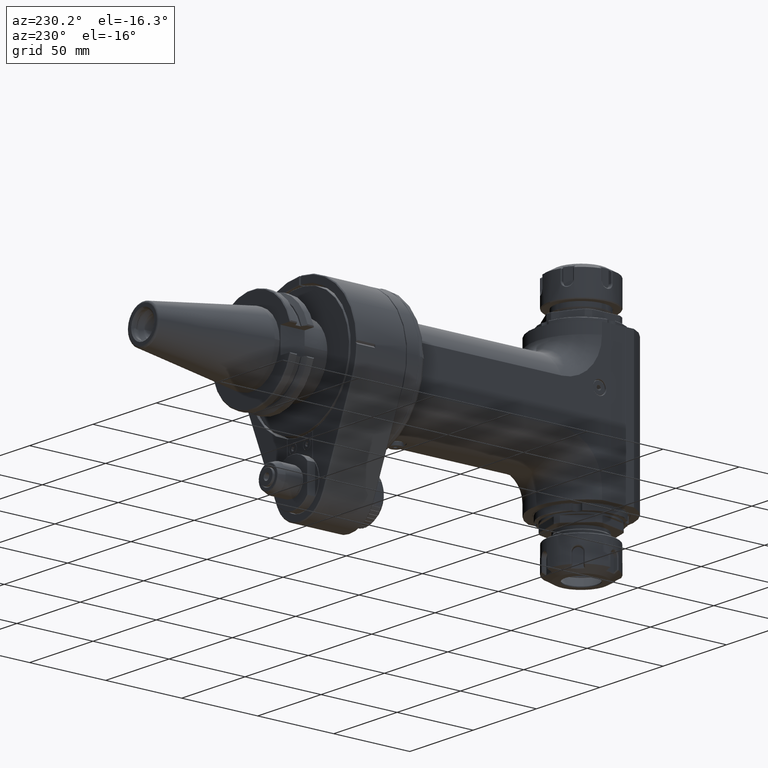
[diagram: clean part render]
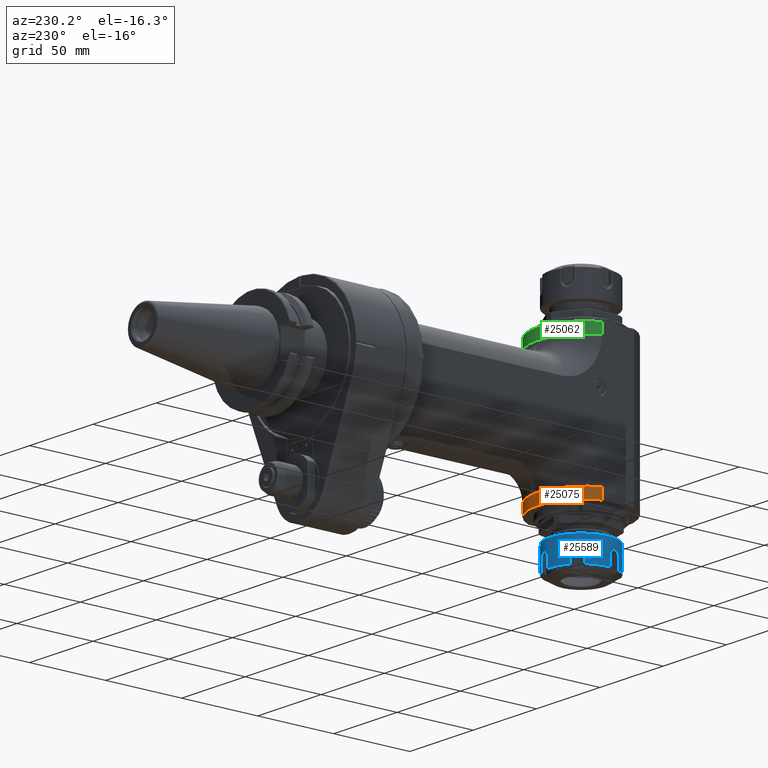
[diagram: same view with three faces highlighted in distinct colors, each labeled with its STEP entity id]
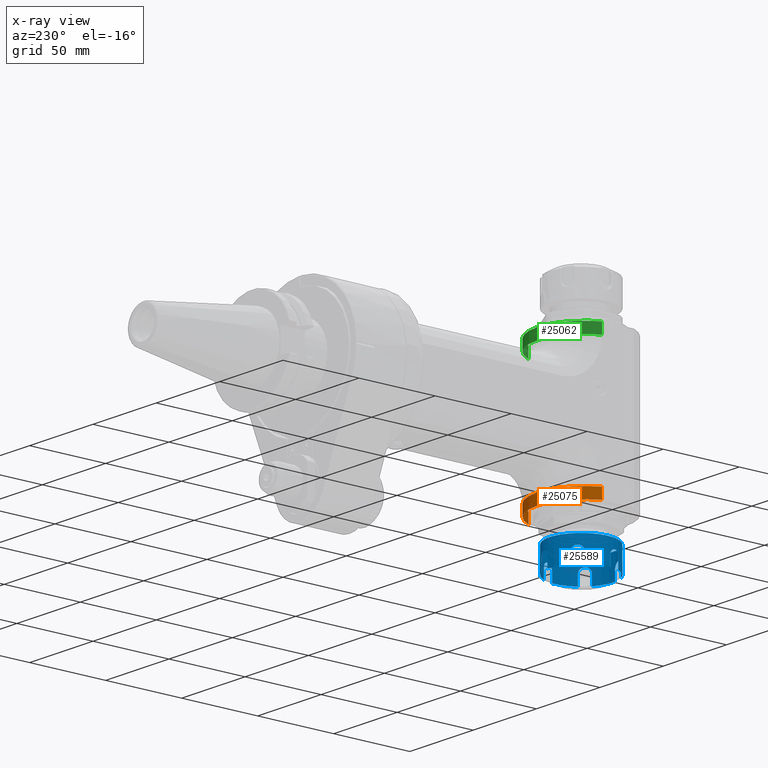
[diagram: x-ray of the same camera — body ghosted, the three highlighted faces saturated]
A machine part, auxiliary view with three faces highlighted in distinct colors.
The next image is the same camera in x-ray (body ghosted, the three faces saturated) — at least one of them is partly hidden behind the body in this view.
Their STEP definitions:

[orange] entity #25075 — the highlighted cylindrical surface (partial cylindrical patch) has radius 32 mm, axis along (-0, 0, -1).
#1540=LINE('',#37385,#3472);
#1596=LINE('',#37834,#3528);
#3472=VECTOR('',#29704,7.);
#3528=VECTOR('',#29868,7.);
#5363=CYLINDRICAL_SURFACE('',#26858,32.);
#5889=FACE_OUTER_BOUND('',#7431,.T.);
#7431=EDGE_LOOP('',(#17100,#17101,#17102,#17103));
#9075=CIRCLE('',#26789,32.);
#9083=CIRCLE('',#26859,32.);
#10217=VERTEX_POINT('',#37376);
#10218=VERTEX_POINT('',#37378);
#10220=VERTEX_POINT('',#37384);
#10371=VERTEX_POINT('',#37832);
#12850=EDGE_CURVE('',#10217,#10218,#9075,.T.);
#12853=EDGE_CURVE('',#10220,#10218,#1540,.T.);
#13008=EDGE_CURVE('',#10371,#10217,#1596,.T.);
#13020=EDGE_CURVE('',#10371,#10220,#9083,.T.);
#17100=ORIENTED_EDGE('',*,*,#13008,.F.);
#17101=ORIENTED_EDGE('',*,*,#13020,.T.);
#17102=ORIENTED_EDGE('',*,*,#12853,.T.);
#17103=ORIENTED_EDGE('',*,*,#12850,.F.);
#25075=ADVANCED_FACE('',(#5889),#5363,.T.);
#26789=AXIS2_PLACEMENT_3D('',#37379,#29697,#29698);
#26858=AXIS2_PLACEMENT_3D('',#37858,#29903,#29904);
#26859=AXIS2_PLACEMENT_3D('',#37859,#29905,#29906);
#29697=DIRECTION('center_axis',(0.,0.,-1.));
#29698=DIRECTION('ref_axis',(-0.906250000000018,0.422742164327108,0.));
#29704=DIRECTION('',(0.,0.,-1.));
#29868=DIRECTION('',(0.,0.,-1.));
#29903=DIRECTION('center_axis',(0.,0.,-1.));
#29904=DIRECTION('ref_axis',(1.,0.,0.));
#29905=DIRECTION('center_axis',(0.,0.,-1.));
#29906=DIRECTION('ref_axis',(-0.906250000000018,0.422742164327108,0.));
#37376=CARTESIAN_POINT('',(-29.,-166.2722507415,-47.));
#37378=CARTESIAN_POINT('',(29.,-166.2722507415,-47.));
#37379=CARTESIAN_POINT('Origin',(0.,-179.8,-47.));
#37384=CARTESIAN_POINT('',(29.,-166.2722507415,-40.));
#37385=CARTESIAN_POINT('',(29.,-166.2722507415,-40.));
#37832=CARTESIAN_POINT('',(-29.,-166.2722507415,-40.));
#37834=CARTESIAN_POINT('',(-29.,-166.2722507415,-40.));
#37858=CARTESIAN_POINT('Origin',(0.,-179.8,55.));
#37859=CARTESIAN_POINT('Origin',(0.,-179.8,-40.));

[blue] entity #25589 — the highlighted cylindrical surface (bore or boss wall) has radius 20.85 mm, axis along (-0, 0, -1).
#1110=B_SPLINE_CURVE_WITH_KNOTS('',3,(#43370,#43371,#43372,#43373,#43374,
#43375,#43376,#43377,#43378,#43379,#43380,#43381,#43382,#43383),
 .UNSPECIFIED.,.F.,.F.,(4,2,2,2,2,2,4),(8.8804526834675E-6,0.071641247032661,
0.144152538462695,0.2831791873941,0.419629719377373,0.489984756441499,0.558207731519408),
 .UNSPECIFIED.);
#1111=B_SPLINE_CURVE_WITH_KNOTS('',3,(#43391,#43392,#43393,#43394,#43395,
#43396,#43397,#43398,#43399,#43400,#43401,#43402,#43403,#43404,#43405,#43406,
#43407,#43408,#43409,#43410,#43411,#43412,#43413,#43414,#43415,#43416),
 .UNSPECIFIED.,.F.,.F.,(4,2,2,2,2,2,2,2,2,2,2,2,4),(1.7881519654597E-5,
0.067907588692697,0.138491669530043,0.27497402678563,0.414979861624011,
0.484477169792936,0.553945936720582,0.623718329748269,0.658431451718642,
0.728153352680308,0.853789411713875,0.956299005462386,1.05186644702598),
 .UNSPECIFIED.);
#1112=B_SPLINE_CURVE_WITH_KNOTS('',3,(#43424,#43425,#43426,#43427,#43428,
#43429,#43430,#43431,#43432,#43433,#43434,#43435,#43436,#43437,#43438,#43439,
#43440,#43441,#43442,#43443,#43444,#43445,#43446,#43447,#43448,#43449),
 .UNSPECIFIED.,.F.,.F.,(4,2,2,2,2,2,2,2,2,2,2,2,4),(1.88569891718872E-5,
0.0677792377868091,0.138933553399323,0.275528151042761,0.414828608229361,
0.54763145599573,0.578738810458775,0.60985559444713,0.672022999759918,0.797346418517486,
0.919100710535635,0.982163318914565,1.04281656941843),.UNSPECIFIED.);
#1113=B_SPLINE_CURVE_WITH_KNOTS('',3,(#43457,#43458,#43459,#43460,#43461,
#43462,#43463,#43464,#43465,#43466,#43467,#43468,#43469,#43470),
 .UNSPECIFIED.,.F.,.F.,(4,2,2,2,2,2,4),(1.57405033563573E-5,0.0678213540002741,
0.137743715284692,0.273506035627301,0.411771695750024,0.483772996816319,
0.554864995903537),.UNSPECIFIED.);
#1114=B_SPLINE_CURVE_WITH_KNOTS('',3,(#43473,#43474,#43475,#43476,#43477,
#43478,#43479,#43480,#43481,#43482,#43483,#43484,#43485,#43486),
 .UNSPECIFIED.,.F.,.F.,(4,2,2,2,2,2,4),(8.88045267748951E-6,0.0716412470324935,
0.144152538462247,0.283179187393486,0.419629719376968,0.489984756441144,
0.558207731518909),.UNSPECIFIED.);
#1115=B_SPLINE_CURVE_WITH_KNOTS('',3,(#43494,#43495,#43496,#43497,#43498,
#43499,#43500,#43501,#43502,#43503,#43504,#43505,#43506,#43507,#43508,#43509,
#43510,#43511,#43512,#43513,#43514,#43515,#43516,#43517,#43518,#43519),
 .UNSPECIFIED.,.F.,.F.,(4,2,2,2,2,2,2,2,2,2,2,2,4),(1.7881519651039E-5,
0.0679075886927322,0.138491669530161,0.274974026786202,0.414979861625346,
0.484477169794633,0.553945936722771,0.623718329751006,0.658431451721587,
0.728153352683556,0.853789411717834,0.956299005466963,1.0518664470311),
 .UNSPECIFIED.);
#1116=B_SPLINE_CURVE_WITH_KNOTS('',3,(#43527,#43528,#43529,#43530,#43531,
#43532,#43533,#43534,#43535,#43536,#43537,#43538,#43539,#43540,#43541,#43542,
#43543,#43544,#43545,#43546,#43547,#43548,#43549,#43550,#43551,#43552),
 .UNSPECIFIED.,.F.,.F.,(4,2,2,2,2,2,2,2,2,2,2,2,4),(1.8856989176297E-5,
0.0677792377866691,0.138933553399142,0.275528151042643,0.414828608229631,
0.547631455995771,0.578738810458403,0.609855594445578,0.672022999755302,
0.797346418507965,0.919100710520477,0.982163318896671,1.04281656939786),
 .UNSPECIFIED.);
#1117=B_SPLINE_CURVE_WITH_KNOTS('',3,(#43559,#43560,#43561,#43562,#43563,
#43564,#43565,#43566,#43567,#43568,#43569,#43570,#43571,#43572),
 .UNSPECIFIED.,.F.,.F.,(4,2,2,2,2,2,4),(1.57405033581336E-5,0.0678213540002615,
0.137743715284569,0.273506035626911,0.411771695749486,0.483772996815737,
0.554864995902884),.UNSPECIFIED.);
#2255=LINE('',#43385,#4187);
#2256=LINE('',#43389,#4188);
#2257=LINE('',#43418,#4189);
#2258=LINE('',#43422,#4190);
#2259=LINE('',#43451,#4191);
#2260=LINE('',#43455,#4192);
#2261=LINE('',#43471,#4193);
#2262=LINE('',#43488,#4194);
#2263=LINE('',#43492,#4195);
#2264=LINE('',#43521,#4196);
#2265=LINE('',#43525,#4197);
#2266=LINE('',#43554,#4198);
#2267=LINE('',#43558,#4199);
#4187=VECTOR('',#31987,10.);
#4188=VECTOR('',#31990,10.);
#4189=VECTOR('',#31991,10.);
#4190=VECTOR('',#31994,10.);
#4191=VECTOR('',#31995,10.);
#4192=VECTOR('',#31998,10.);
#4193=VECTOR('',#31999,20.85);
#4194=VECTOR('',#32000,10.);
#4195=VECTOR('',#32003,10.);
#4196=VECTOR('',#32004,10.);
#4197=VECTOR('',#32007,10.);
#4198=VECTOR('',#32008,10.);
#4199=VECTOR('',#32011,10.);
#5424=CYLINDRICAL_SURFACE('',#27575,20.85);
#6403=FACE_OUTER_BOUND('',#7996,.T.);
#7996=EDGE_LOOP('',(#19629,#19630,#19631,#19632,#19633,#19634,#19635,#19636,
#19637,#19638,#19639,#19640,#19641,#19642,#19643,#19644,#19645,#19646,#19647,
#19648,#19649,#19650,#19651,#19652,#19653,#19654,#19655,#19656,#19657,#19658));
#9310=CIRCLE('',#27573,20.85);
#9311=CIRCLE('',#27574,20.85);
#9312=CIRCLE('',#27576,20.85);
#9313=CIRCLE('',#27577,20.85);
#9314=CIRCLE('',#27578,20.85);
#9315=CIRCLE('',#27579,20.85);
#9316=CIRCLE('',#27580,20.85);
#9317=CIRCLE('',#27581,20.85);
#11107=VERTEX_POINT('',#43362);
#11108=VERTEX_POINT('',#43363);
#11109=VERTEX_POINT('',#43368);
#11110=VERTEX_POINT('',#43369);
#11111=VERTEX_POINT('',#43384);
#11112=VERTEX_POINT('',#43386);
#11113=VERTEX_POINT('',#43388);
#11114=VERTEX_POINT('',#43390);
#11115=VERTEX_POINT('',#43417);
#11116=VERTEX_POINT('',#43419);
#11117=VERTEX_POINT('',#43421);
#11118=VERTEX_POINT('',#43423);
#11119=VERTEX_POINT('',#43450);
#11120=VERTEX_POINT('',#43452);
#11121=VERTEX_POINT('',#43454);
#11122=VERTEX_POINT('',#43456);
#11123=VERTEX_POINT('',#43472);
#11124=VERTEX_POINT('',#43487);
#11125=VERTEX_POINT('',#43489);
#11126=VERTEX_POINT('',#43491);
#11127=VERTEX_POINT('',#43493);
#11128=VERTEX_POINT('',#43520);
#11129=VERTEX_POINT('',#43522);
#11130=VERTEX_POINT('',#43524);
#11131=VERTEX_POINT('',#43526);
#11132=VERTEX_POINT('',#43553);
#11133=VERTEX_POINT('',#43555);
#11134=VERTEX_POINT('',#43557);
#14201=EDGE_CURVE('',#11107,#11108,#9310,.T.);
#14202=EDGE_CURVE('',#11108,#11107,#9311,.T.);
#14204=EDGE_CURVE('',#11109,#11110,#1110,.T.);
#14205=EDGE_CURVE('',#11110,#11111,#2255,.T.);
#14206=EDGE_CURVE('',#11111,#11112,#9312,.T.);
#14207=EDGE_CURVE('',#11112,#11113,#2256,.T.);
#14208=EDGE_CURVE('',#11113,#11114,#1111,.T.);
#14209=EDGE_CURVE('',#11114,#11115,#2257,.T.);
#14210=EDGE_CURVE('',#11115,#11116,#9313,.T.);
#14211=EDGE_CURVE('',#11116,#11117,#2258,.T.);
#14212=EDGE_CURVE('',#11117,#11118,#1112,.T.);
#14213=EDGE_CURVE('',#11118,#11119,#2259,.T.);
#14214=EDGE_CURVE('',#11119,#11120,#9314,.T.);
#14215=EDGE_CURVE('',#11120,#11121,#2260,.T.);
#14216=EDGE_CURVE('',#11121,#11122,#1113,.T.);
#14217=EDGE_CURVE('',#11122,#11107,#2261,.T.);
#14218=EDGE_CURVE('',#11122,#11123,#1114,.T.);
#14219=EDGE_CURVE('',#11123,#11124,#2262,.T.);
#14220=EDGE_CURVE('',#11125,#11124,#9315,.T.);
#14221=EDGE_CURVE('',#11125,#11126,#2263,.T.);
#14222=EDGE_CURVE('',#11126,#11127,#1115,.T.);
#14223=EDGE_CURVE('',#11127,#11128,#2264,.T.);
#14224=EDGE_CURVE('',#11129,#11128,#9316,.T.);
#14225=EDGE_CURVE('',#11129,#11130,#2265,.T.);
#14226=EDGE_CURVE('',#11130,#11131,#1116,.T.);
#14227=EDGE_CURVE('',#11131,#11132,#2266,.T.);
#14228=EDGE_CURVE('',#11133,#11132,#9317,.T.);
#14229=EDGE_CURVE('',#11133,#11134,#2267,.T.);
#14230=EDGE_CURVE('',#11134,#11109,#1117,.T.);
#19629=ORIENTED_EDGE('',*,*,#14204,.T.);
#19630=ORIENTED_EDGE('',*,*,#14205,.T.);
#19631=ORIENTED_EDGE('',*,*,#14206,.T.);
#19632=ORIENTED_EDGE('',*,*,#14207,.T.);
#19633=ORIENTED_EDGE('',*,*,#14208,.T.);
#19634=ORIENTED_EDGE('',*,*,#14209,.T.);
#19635=ORIENTED_EDGE('',*,*,#14210,.T.);
#19636=ORIENTED_EDGE('',*,*,#14211,.T.);
#19637=ORIENTED_EDGE('',*,*,#14212,.T.);
#19638=ORIENTED_EDGE('',*,*,#14213,.T.);
#19639=ORIENTED_EDGE('',*,*,#14214,.T.);
#19640=ORIENTED_EDGE('',*,*,#14215,.T.);
#19641=ORIENTED_EDGE('',*,*,#14216,.T.);
#19642=ORIENTED_EDGE('',*,*,#14217,.T.);
#19643=ORIENTED_EDGE('',*,*,#14201,.T.);
#19644=ORIENTED_EDGE('',*,*,#14202,.T.);
#19645=ORIENTED_EDGE('',*,*,#14217,.F.);
#19646=ORIENTED_EDGE('',*,*,#14218,.T.);
#19647=ORIENTED_EDGE('',*,*,#14219,.T.);
#19648=ORIENTED_EDGE('',*,*,#14220,.F.);
#19649=ORIENTED_EDGE('',*,*,#14221,.T.);
#19650=ORIENTED_EDGE('',*,*,#14222,.T.);
#19651=ORIENTED_EDGE('',*,*,#14223,.T.);
#19652=ORIENTED_EDGE('',*,*,#14224,.F.);
#19653=ORIENTED_EDGE('',*,*,#14225,.T.);
#19654=ORIENTED_EDGE('',*,*,#14226,.T.);
#19655=ORIENTED_EDGE('',*,*,#14227,.T.);
#19656=ORIENTED_EDGE('',*,*,#14228,.F.);
#19657=ORIENTED_EDGE('',*,*,#14229,.T.);
#19658=ORIENTED_EDGE('',*,*,#14230,.T.);
#25589=ADVANCED_FACE('',(#6403),#5424,.T.);
#27573=AXIS2_PLACEMENT_3D('',#43364,#31980,#31981);
#27574=AXIS2_PLACEMENT_3D('',#43365,#31982,#31983);
#27575=AXIS2_PLACEMENT_3D('',#43367,#31985,#31986);
#27576=AXIS2_PLACEMENT_3D('',#43387,#31988,#31989);
#27577=AXIS2_PLACEMENT_3D('',#43420,#31992,#31993);
#27578=AXIS2_PLACEMENT_3D('',#43453,#31996,#31997);
#27579=AXIS2_PLACEMENT_3D('',#43490,#32001,#32002);
#27580=AXIS2_PLACEMENT_3D('',#43523,#32005,#32006);
#27581=AXIS2_PLACEMENT_3D('',#43556,#32009,#32010);
#31980=DIRECTION('center_axis',(0.,0.,-1.));
#31981=DIRECTION('ref_axis',(0.707106781186498,-0.707106781186598,0.));
#31982=DIRECTION('center_axis',(0.,0.,-1.));
#31983=DIRECTION('ref_axis',(0.707106781186498,-0.707106781186598,0.));
#31985=DIRECTION('center_axis',(0.,0.,-1.));
#31986=DIRECTION('ref_axis',(0.707106781186498,-0.707106781186598,0.));
#31987=DIRECTION('',(0.,0.,-1.));
#31988=DIRECTION('center_axis',(0.,0.,1.));
#31989=DIRECTION('ref_axis',(0.818185363413363,-0.574954529590074,0.));
#31990=DIRECTION('',(0.,0.,1.));
#31991=DIRECTION('',(0.,0.,-1.));
#31992=DIRECTION('center_axis',(0.,0.,1.));
#31993=DIRECTION('ref_axis',(0.907017910352629,0.421092044925513,0.));
#31994=DIRECTION('',(0.,0.,1.));
#31995=DIRECTION('',(0.,0.,-1.));
#31996=DIRECTION('center_axis',(0.,0.,1.));
#31997=DIRECTION('ref_axis',(0.0888325469392412,0.996046574515613,0.));
#31998=DIRECTION('',(0.,0.,1.));
#31999=DIRECTION('',(0.,0.,1.));
#32000=DIRECTION('',(0.,0.,-1.));
#32001=DIRECTION('center_axis',(0.,0.,-1.));
#32002=DIRECTION('ref_axis',(-0.996046574515623,-0.0888325469391321,0.));
#32003=DIRECTION('',(0.,0.,1.));
#32004=DIRECTION('',(0.,0.,-1.));
#32005=DIRECTION('center_axis',(0.,0.,-1.));
#32006=DIRECTION('ref_axis',(-0.421092044925596,-0.907017910352591,0.));
#32007=DIRECTION('',(0.,0.,1.));
#32008=DIRECTION('',(0.,0.,-1.));
#32009=DIRECTION('center_axis',(0.,0.,-1.));
#32010=DIRECTION('ref_axis',(0.574954529590007,-0.81818536341341,0.));
#32011=DIRECTION('',(0.,0.,1.));
#43362=CARTESIAN_POINT('',(-14.74317638774,-162.0568236123,-62.00000277094));
#43363=CARTESIAN_POINT('',(14.7431763877388,-162.056823612263,-62.0000027709424));
#43364=CARTESIAN_POINT('Origin',(0.,-176.8,-62.00000277094));
#43365=CARTESIAN_POINT('Origin',(0.,-176.8,-62.00000277094));
#43367=CARTESIAN_POINT('Origin',(0.,-176.8,-60.5));
#43368=CARTESIAN_POINT('',(14.7431737490208,-191.543173750104,-67.9999093069869));
#43369=CARTESIAN_POINT('',(17.0592045060876,-188.787659970177,-71.4999999556922));
#43370=CARTESIAN_POINT('Ctrl Pts',(14.7431763870307,-191.543176388448,-67.9998988188292));
#43371=CARTESIAN_POINT('Ctrl Pts',(14.9120154371079,-191.374337338387,-67.9997098724781));
#43372=CARTESIAN_POINT('Ctrl Pts',(15.0779139343322,-191.202565561858,-68.0233046357221));
#43373=CARTESIAN_POINT('Ctrl Pts',(15.3996848284967,-190.858038470994,-68.1165549708601));
#43374=CARTESIAN_POINT('Ctrl Pts',(15.5555384726784,-190.685166660419,-68.1868093962064));
#43375=CARTESIAN_POINT('Ctrl Pts',(15.9852446694346,-190.193234711179,-68.4575849150465));
#43376=CARTESIAN_POINT('Ctrl Pts',(16.2333008808686,-189.888627363897,-68.7163692985507));
#43377=CARTESIAN_POINT('Ctrl Pts',(16.6371075952518,-189.371191113362,-69.3606561564466));
#43378=CARTESIAN_POINT('Ctrl Pts',(16.7924982271377,-189.159893749286,-69.7403302193558));
#43379=CARTESIAN_POINT('Ctrl Pts',(16.952482072793,-188.938553613989,-70.3744694481651));
#43380=CARTESIAN_POINT('Ctrl Pts',(16.9928475442863,-188.881714152658,-70.5973034114872));
#43381=CARTESIAN_POINT('Ctrl Pts',(17.0460249309869,-188.80656437899,-71.0473651918642));
#43382=CARTESIAN_POINT('Ctrl Pts',(17.059476537522,-188.787358356038,-71.2739910684245));
#43383=CARTESIAN_POINT('Ctrl Pts',(17.0593037197582,-188.787604289308,-71.5000009014005));
#43384=CARTESIAN_POINT('',(17.05916482717,-188.787801942,-78.12250092524));
#43385=CARTESIAN_POINT('',(17.0591648271973,-188.787801941912,-60.5));
#43386=CARTESIAN_POINT('',(20.76757107865,-174.9478413963,-78.12250092524));
#43387=CARTESIAN_POINT('Origin',(0.,-176.8,-78.12250092524));
#43388=CARTESIAN_POINT('',(20.767521537055,-174.94806855584,-71.4999999716341));
#43389=CARTESIAN_POINT('',(20.7675710786509,-174.947841396321,-60.5));
#43390=CARTESIAN_POINT('',(18.9111760975423,-168.020065682398,-71.4999999558186));
#43391=CARTESIAN_POINT('Ctrl Pts',(20.7676014787653,-174.948182293209,-71.500000831647));
#43392=CARTESIAN_POINT('Ctrl Pts',(20.7676188868011,-174.94837751931,-71.2737014095556));
#43393=CARTESIAN_POINT('Ctrl Pts',(20.7655578880662,-174.924854400058,-71.0464645270052));
#43394=CARTESIAN_POINT('Ctrl Pts',(20.7570199363155,-174.832550894353,-70.5938641186685));
#43395=CARTESIAN_POINT('Ctrl Pts',(20.7504116927973,-174.762397927025,-70.3695507681703));
#43396=CARTESIAN_POINT('Ctrl Pts',(20.7221068470428,-174.486973364167,-69.7306199497593));
#43397=CARTESIAN_POINT('Ctrl Pts',(20.6928280702116,-174.223609018295,-69.3497212879574));
#43398=CARTESIAN_POINT('Ctrl Pts',(20.5999691816837,-173.563047075071,-68.70123615472));
#43399=CARTESIAN_POINT('Ctrl Pts',(20.5359606785247,-173.168323117326,-68.4418242112298));
#43400=CARTESIAN_POINT('Ctrl Pts',(20.4081422213358,-172.524768571885,-68.1777489295405));
#43401=CARTESIAN_POINT('Ctrl Pts',(20.3608026792749,-172.304076046398,-68.1112091467045));
#43402=CARTESIAN_POINT('Ctrl Pts',(20.256466397051,-171.855190253815,-68.0221904557127));
#43403=CARTESIAN_POINT('Ctrl Pts',(20.1996878828002,-171.627943223853,-67.999862289649));
#43404=CARTESIAN_POINT('Ctrl Pts',(20.0779047461079,-171.173652585169,-68.0001365553688));
#43405=CARTESIAN_POINT('Ctrl Pts',(20.0131367166908,-170.947619383378,-68.0229355247662));
#43406=CARTESIAN_POINT('Ctrl Pts',(19.9122361556557,-170.616263756347,-68.0906870605713));
#43407=CARTESIAN_POINT('Ctrl Pts',(19.8781062385988,-170.507463012474,-68.1187315928412));
#43408=CARTESIAN_POINT('Ctrl Pts',(19.7743335921791,-170.185683734788,-68.2191923203281));
#43409=CARTESIAN_POINT('Ctrl Pts',(19.7036600691707,-169.978563255934,-68.3077513312044));
#43410=CARTESIAN_POINT('Ctrl Pts',(19.5064512246021,-169.42688532516,-68.6141314449676));
#43411=CARTESIAN_POINT('Ctrl Pts',(19.367762534895,-169.072079771819,-68.8966523205528));
#43412=CARTESIAN_POINT('Ctrl Pts',(19.1373659140957,-168.520148406045,-69.6059556461174));
#43413=CARTESIAN_POINT('Ctrl Pts',(19.0517933261511,-168.328208744537,-69.9680263161831));
#43414=CARTESIAN_POINT('Ctrl Pts',(18.9402903685497,-168.081920217096,-70.7242355185773));
#43415=CARTESIAN_POINT('Ctrl Pts',(18.9109190067233,-168.019359776354,-71.1145072387204));
#43416=CARTESIAN_POINT('Ctrl Pts',(18.9111905992057,-168.019944754131,-71.5000014806403));
#43417=CARTESIAN_POINT('',(18.91132343085,-168.0202308633,-78.12250092524));
#43418=CARTESIAN_POINT('',(18.9113234308437,-168.020230863285,-60.5));
#43419=CARTESIAN_POINT('',(8.7797691367,-157.8886765691,-78.12250092524));
#43420=CARTESIAN_POINT('Origin',(0.,-176.8,-78.12250092524));
#43421=CARTESIAN_POINT('',(8.77990980217601,-157.888822958315,-71.4999999493892));
#43422=CARTESIAN_POINT('',(8.77976913666956,-157.888676569135,-60.5));
#43423=CARTESIAN_POINT('',(1.85199223066131,-156.03247292493,-71.4999999368364));
#43424=CARTESIAN_POINT('Ctrl Pts',(8.78009751102421,-157.888829023646,-71.5000008889396));
#43425=CARTESIAN_POINT('Ctrl Pts',(8.78027680710327,-157.88891226741,-71.2741323985168));
#43426=CARTESIAN_POINT('Ctrl Pts',(8.75889434216421,-157.878945001058,-71.0470917544465));
#43427=CARTESIAN_POINT('Ctrl Pts',(8.67452706172481,-157.840112253238,-70.5928869321526));
#43428=CARTESIAN_POINT('Ctrl Pts',(8.60985490908023,-157.810476509798,-70.3668926937998));
#43429=CARTESIAN_POINT('Ctrl Pts',(8.35561056558594,-157.696601815723,-69.7263329457535));
#43430=CARTESIAN_POINT('Ctrl Pts',(8.11175798827196,-157.589855768934,-69.3455069035907));
#43431=CARTESIAN_POINT('Ctrl Pts',(7.49696075810927,-157.341578943711,-68.7020296726769));
#43432=CARTESIAN_POINT('Ctrl Pts',(7.12679585734157,-157.201035960379,-68.4447820941399));
#43433=CARTESIAN_POINT('Ctrl Pts',(6.32474885172813,-156.928134884217,-68.1014074302769));
#43434=CARTESIAN_POINT('Ctrl Pts',(5.87805084056063,-156.789446113192,-67.9996132918299));
#43435=CARTESIAN_POINT('Ctrl Pts',(5.28045351073632,-156.629400207717,-68.0000944849583));
#43436=CARTESIAN_POINT('Ctrl Pts',(5.16684527240681,-156.600003296527,-68.0058091880531));
#43437=CARTESIAN_POINT('Ctrl Pts',(4.94005444448097,-156.543346099227,-68.0284484737245));
#43438=CARTESIAN_POINT('Ctrl Pts',(4.82698286911852,-156.516114136804,-68.0453653907442));
#43439=CARTESIAN_POINT('Ctrl Pts',(4.49034129856914,-156.437967209156,-68.1127090850278));
#43440=CARTESIAN_POINT('Ctrl Pts',(4.26978015154556,-156.39071805534,-68.1795906723037));
#43441=CARTESIAN_POINT('Ctrl Pts',(3.62631603236334,-156.263091721346,-68.4448331654927));
#43442=CARTESIAN_POINT('Ctrl Pts',(3.23180217520584,-156.19923219922,-68.7050975698328));
#43443=CARTESIAN_POINT('Ctrl Pts',(2.57352903029857,-156.106843044268,-69.3537039649402));
#43444=CARTESIAN_POINT('Ctrl Pts',(2.31100780141247,-156.07767594875,-69.7343388329381));
#43445=CARTESIAN_POINT('Ctrl Pts',(2.03682168102007,-156.049513194305,-70.371838734215));
#43446=CARTESIAN_POINT('Ctrl Pts',(1.96691131048652,-156.042929524232,-70.5960359979192));
#43447=CARTESIAN_POINT('Ctrl Pts',(1.87497750804494,-156.034427333272,-71.0475467413705));
#43448=CARTESIAN_POINT('Ctrl Pts',(1.85152024569369,-156.032371996206,-71.2742751528229));
#43449=CARTESIAN_POINT('Ctrl Pts',(1.85187122464354,-156.032403293416,-71.5000012636407));
#43450=CARTESIAN_POINT('',(1.852158603683,-156.0324289213,-78.12250092524));
#43451=CARTESIAN_POINT('',(1.85215860367351,-156.032428921349,-60.5));
#43452=CARTESIAN_POINT('',(-11.98780194195,-159.7408351728,-78.12250092524));
#43453=CARTESIAN_POINT('Origin',(0.,-176.8,-78.12250092524));
#43454=CARTESIAN_POINT('',(-11.9876414612656,-159.740796731363,-71.4999999593875));
#43455=CARTESIAN_POINT('',(-11.9878019419427,-159.740835172824,-60.5));
#43456=CARTESIAN_POINT('',(-14.7431716005123,-162.056828442149,-67.9999104731237));
#43457=CARTESIAN_POINT('Ctrl Pts',(-11.9875574920713,-159.740663395833,
-71.5000006699758));
#43458=CARTESIAN_POINT('Ctrl Pts',(-11.9874096835465,-159.740559531114,
-71.273981770886));
#43459=CARTESIAN_POINT('Ctrl Pts',(-12.0065972036953,-159.753998250592,
-71.0473848754558));
#43460=CARTESIAN_POINT('Ctrl Pts',(-12.0817075996752,-159.807147865945,
-70.5973132463576));
#43461=CARTESIAN_POINT('Ctrl Pts',(-12.1384670745825,-159.847455933683,
-70.3747562190626));
#43462=CARTESIAN_POINT('Ctrl Pts',(-12.3599830238662,-160.007565219918,
-69.7400316336772));
#43463=CARTESIAN_POINT('Ctrl Pts',(-12.5713959078636,-160.16303711561,-69.3602033181076));
#43464=CARTESIAN_POINT('Ctrl Pts',(-13.0895210804853,-160.567411999567,
-68.7154574062837));
#43465=CARTESIAN_POINT('Ctrl Pts',(-13.3944324469608,-160.815752247762,
-68.4566705635244));
#43466=CARTESIAN_POINT('Ctrl Pts',(-13.8863476043996,-161.245518928675,
-68.1862933176008));
#43467=CARTESIAN_POINT('Ctrl Pts',(-14.05903937701,-161.401232656654,-68.1162131903678));
#43468=CARTESIAN_POINT('Ctrl Pts',(-14.4031102371795,-161.722611938001,
-68.0232299265432));
#43469=CARTESIAN_POINT('Ctrl Pts',(-14.5746075242407,-161.88825474811,-67.9997054011893));
#43470=CARTESIAN_POINT('Ctrl Pts',(-14.7431764162499,-162.056823640771,
-67.9998887869917));
#43471=CARTESIAN_POINT('',(-14.7431763877385,-162.056823612259,-60.5));
#43472=CARTESIAN_POINT('',(-17.0592045060876,-164.812340029823,-71.4999999556922));
#43473=CARTESIAN_POINT('Ctrl Pts',(-14.7431763870307,-162.056823611552,
-67.9998988188292));
#43474=CARTESIAN_POINT('Ctrl Pts',(-14.9120154371074,-162.225662661612,
-67.9997098724781));
#43475=CARTESIAN_POINT('Ctrl Pts',(-15.0779139343314,-162.397434438141,
-68.023304635722));
#43476=CARTESIAN_POINT('Ctrl Pts',(-15.3996848284958,-162.741961529005,
-68.1165549708598));
#43477=CARTESIAN_POINT('Ctrl Pts',(-15.5555384726773,-162.91483333958,-68.1868093962059));
#43478=CARTESIAN_POINT('Ctrl Pts',(-15.9852446694338,-163.40676528882,-68.4575849150457));
#43479=CARTESIAN_POINT('Ctrl Pts',(-16.2333008808682,-163.711372636102,
-68.7163692985502));
#43480=CARTESIAN_POINT('Ctrl Pts',(-16.6371075952527,-164.228808886639,
-69.3606561564479));
#43481=CARTESIAN_POINT('Ctrl Pts',(-16.7924982271382,-164.440106250714,
-69.7403302193573));
#43482=CARTESIAN_POINT('Ctrl Pts',(-16.9524820727933,-164.661446386012,
-70.3744694481667));
#43483=CARTESIAN_POINT('Ctrl Pts',(-16.9928475442865,-164.718285847342,
-70.5973034114886));
#43484=CARTESIAN_POINT('Ctrl Pts',(-17.0460249309868,-164.79343562101,-71.047365191864));
#43485=CARTESIAN_POINT('Ctrl Pts',(-17.059476537522,-164.812641643961,-71.2739910684246));
#43486=CARTESIAN_POINT('Ctrl Pts',(-17.0593037197581,-164.812395710692,
-71.5000009014006));
#43487=CARTESIAN_POINT('',(-17.05916482717,-164.812198058,-78.12250092524));
#43488=CARTESIAN_POINT('',(-17.0591648271973,-164.812198058088,-60.5));
#43489=CARTESIAN_POINT('',(-20.76757107865,-178.6521586037,-78.12250092524));
#43490=CARTESIAN_POINT('Origin',(0.,-176.8,-78.12250092524));
#43491=CARTESIAN_POINT('',(-20.767521537055,-178.65193144416,-71.4999999716341));
#43492=CARTESIAN_POINT('',(-20.7675710786509,-178.652158603679,-60.5));
#43493=CARTESIAN_POINT('',(-18.9111760975423,-185.579934317602,-71.4999999558186));
#43494=CARTESIAN_POINT('Ctrl Pts',(-20.7676014787653,-178.651817706791,
-71.5000008316471));
#43495=CARTESIAN_POINT('Ctrl Pts',(-20.7676188868011,-178.65162248069,-71.2737014095555));
#43496=CARTESIAN_POINT('Ctrl Pts',(-20.7655578880662,-178.675145599942,
-71.0464645270049));
#43497=CARTESIAN_POINT('Ctrl Pts',(-20.7570199363155,-178.767449105647,
-70.5938641186677));
#43498=CARTESIAN_POINT('Ctrl Pts',(-20.7504116927973,-178.837602072975,
-70.369550768169));
#43499=CARTESIAN_POINT('Ctrl Pts',(-20.7221068470427,-179.113026635834,
-69.7306199497582));
#43500=CARTESIAN_POINT('Ctrl Pts',(-20.6928280702114,-179.376390981706,
-69.3497212879561));
#43501=CARTESIAN_POINT('Ctrl Pts',(-20.5999691816836,-180.03695292493,-68.7012361547194));
#43502=CARTESIAN_POINT('Ctrl Pts',(-20.5359606785245,-180.431676882675,
-68.4418242112293));
#43503=CARTESIAN_POINT('Ctrl Pts',(-20.4081422213357,-181.075231428116,
-68.1777489295403));
#43504=CARTESIAN_POINT('Ctrl Pts',(-20.3608026792748,-181.295923953603,
-68.1112091467044));
#43505=CARTESIAN_POINT('Ctrl Pts',(-20.256466397051,-181.744809746185,-68.0221904557126));
#43506=CARTESIAN_POINT('Ctrl Pts',(-20.1996878828001,-181.972056776148,
-67.999862289649));
#43507=CARTESIAN_POINT('Ctrl Pts',(-20.0779047461079,-182.426347414831,
-68.0001365553688));
#43508=CARTESIAN_POINT('Ctrl Pts',(-20.0131367166908,-182.652380616622,
-68.0229355247662));
#43509=CARTESIAN_POINT('Ctrl Pts',(-19.9122361556558,-182.983736243653,
-68.0906870605712));
#43510=CARTESIAN_POINT('Ctrl Pts',(-19.878106238599,-183.092536987526,-68.118731592841));
#43511=CARTESIAN_POINT('Ctrl Pts',(-19.7743335921791,-183.414316265213,
-68.2191923203281));
#43512=CARTESIAN_POINT('Ctrl Pts',(-19.7036600691706,-183.621436744066,
-68.3077513312045));
#43513=CARTESIAN_POINT('Ctrl Pts',(-19.506451224602,-184.17311467484,-68.6141314449677));
#43514=CARTESIAN_POINT('Ctrl Pts',(-19.367762534895,-184.527920228181,-68.8966523205529));
#43515=CARTESIAN_POINT('Ctrl Pts',(-19.1373659140958,-185.079851593955,
-69.6059556461173));
#43516=CARTESIAN_POINT('Ctrl Pts',(-19.0517933261511,-185.271791255463,
-69.9680263161831));
#43517=CARTESIAN_POINT('Ctrl Pts',(-18.9402903685497,-185.518079782904,
-70.7242355185771));
#43518=CARTESIAN_POINT('Ctrl Pts',(-18.9109190067233,-185.580640223646,
-71.1145072387203));
#43519=CARTESIAN_POINT('Ctrl Pts',(-18.9111905992057,-185.580055245869,
-71.5000014806403));
#43520=CARTESIAN_POINT('',(-18.91132343085,-185.5797691367,-78.12250092524));
#43521=CARTESIAN_POINT('',(-18.9113234308437,-185.579769136715,-60.5));
#43522=CARTESIAN_POINT('',(-8.7797691367,-195.7113234309,-78.12250092524));
#43523=CARTESIAN_POINT('Origin',(0.,-176.8,-78.12250092524));
#43524=CARTESIAN_POINT('',(-8.77990980217605,-195.711177041685,-71.4999999493892));
#43525=CARTESIAN_POINT('',(-8.7797691366696,-195.711323430865,-60.5));
#43526=CARTESIAN_POINT('',(-1.85199223066126,-197.56752707507,-71.4999999368364));
#43527=CARTESIAN_POINT('Ctrl Pts',(-8.78009751102427,-195.711170976354,
-71.5000008889396));
#43528=CARTESIAN_POINT('Ctrl Pts',(-8.78027680710332,-195.71108773259,-71.2741323985173));
#43529=CARTESIAN_POINT('Ctrl Pts',(-8.75889434216425,-195.721054998942,
-71.0470917544471));
#43530=CARTESIAN_POINT('Ctrl Pts',(-8.67452706172532,-195.759887746762,
-70.5928869321545));
#43531=CARTESIAN_POINT('Ctrl Pts',(-8.60985490908101,-195.789523490202,
-70.3668926938022));
#43532=CARTESIAN_POINT('Ctrl Pts',(-8.3556105655876,-195.903398184276,-69.7263329457566));
#43533=CARTESIAN_POINT('Ctrl Pts',(-8.11175798827431,-196.010144231065,
-69.3455069035939));
#43534=CARTESIAN_POINT('Ctrl Pts',(-7.4969607581126,-196.258421056288,-68.7020296726794));
#43535=CARTESIAN_POINT('Ctrl Pts',(-7.12679585734454,-196.39896403962,-68.4447820941417));
#43536=CARTESIAN_POINT('Ctrl Pts',(-6.32474885173377,-196.671865115781,
-68.1014074302788));
#43537=CARTESIAN_POINT('Ctrl Pts',(-5.87805084056577,-196.810553886807,
-67.99961329183));
#43538=CARTESIAN_POINT('Ctrl Pts',(-5.28045351073642,-196.970599792282,
-68.0000944849583));
#43539=CARTESIAN_POINT('Ctrl Pts',(-5.166845272407,-196.999996703473,-68.0058091880529));
#43540=CARTESIAN_POINT('Ctrl Pts',(-4.94005444448101,-197.056653900773,
-68.0284484737243));
#43541=CARTESIAN_POINT('Ctrl Pts',(-4.82698286911791,-197.083885863196,
-68.045365390744));
#43542=CARTESIAN_POINT('Ctrl Pts',(-4.49034129856938,-197.162032790844,
-68.1127090850274));
#43543=CARTESIAN_POINT('Ctrl Pts',(-4.26978015154738,-197.209281944659,
-68.179590672303));
#43544=CARTESIAN_POINT('Ctrl Pts',(-3.62631603236524,-197.336908278653,
-68.4448331654915));
#43545=CARTESIAN_POINT('Ctrl Pts',(-3.23180217520617,-197.40076780078,-68.7050975698323));
#43546=CARTESIAN_POINT('Ctrl Pts',(-2.57352903029932,-197.493156955732,
-69.3537039649396));
#43547=CARTESIAN_POINT('Ctrl Pts',(-2.31100780141307,-197.52232405125,-69.7343388329372));
#43548=CARTESIAN_POINT('Ctrl Pts',(-2.03682168102045,-197.550486805695,
-70.3718387342137));
#43549=CARTESIAN_POINT('Ctrl Pts',(-1.96691131048675,-197.557070475768,
-70.5960359979181));
#43550=CARTESIAN_POINT('Ctrl Pts',(-1.874977508045,-197.565572666728,-71.0475467413698));
#43551=CARTESIAN_POINT('Ctrl Pts',(-1.85152024569366,-197.567628003794,
-71.2742751528225));
#43552=CARTESIAN_POINT('Ctrl Pts',(-1.8518712246435,-197.567596706584,-71.5000012636407));
#43553=CARTESIAN_POINT('',(-1.852158603683,-197.5675710787,-78.12250092524));
#43554=CARTESIAN_POINT('',(-1.85215860367349,-197.567571078651,-60.5));
#43555=CARTESIAN_POINT('',(11.98780194195,-193.8591648272,-78.12250092524));
#43556=CARTESIAN_POINT('Origin',(0.,-176.8,-78.12250092524));
#43557=CARTESIAN_POINT('',(11.9876414612656,-193.859203268637,-71.4999999593875));
#43558=CARTESIAN_POINT('',(11.9878019419427,-193.859164827176,-60.5));
#43559=CARTESIAN_POINT('Ctrl Pts',(11.9875574920713,-193.859336604167,-71.5000006699758));
#43560=CARTESIAN_POINT('Ctrl Pts',(11.9874096835465,-193.859440468886,-71.2739817708861));
#43561=CARTESIAN_POINT('Ctrl Pts',(12.0065972036952,-193.846001749408,-71.047384875456));
#43562=CARTESIAN_POINT('Ctrl Pts',(12.0817075996753,-193.792852134055,-70.5973132463574));
#43563=CARTESIAN_POINT('Ctrl Pts',(12.1384670745826,-193.752544066317,-70.3747562190623));
#43564=CARTESIAN_POINT('Ctrl Pts',(12.3599830238664,-193.592434780082,-69.7400316336768));
#43565=CARTESIAN_POINT('Ctrl Pts',(12.5713959078641,-193.436962884389,-69.3602033181071));
#43566=CARTESIAN_POINT('Ctrl Pts',(13.0895210804851,-193.032588000433,-68.7154574062839));
#43567=CARTESIAN_POINT('Ctrl Pts',(13.3944324469605,-192.784247752239,-68.4566705635246));
#43568=CARTESIAN_POINT('Ctrl Pts',(13.8863476043994,-192.354481071325,-68.1862933176008));
#43569=CARTESIAN_POINT('Ctrl Pts',(14.05903937701,-192.198767343346,-68.1162131903678));
#43570=CARTESIAN_POINT('Ctrl Pts',(14.4031102371792,-191.877388061999,-68.0232299265432));
#43571=CARTESIAN_POINT('Ctrl Pts',(14.5746075242407,-191.71174525189,-67.9997054011893));
#43572=CARTESIAN_POINT('Ctrl Pts',(14.74317641625,-191.543176359229,-67.9998887869917));

[green] entity #25062 — the highlighted cylindrical surface (partial cylindrical patch) has radius 32 mm, axis along (-0, 0, -1).
#1544=LINE('',#37396,#3476);
#1591=LINE('',#37821,#3523);
#3476=VECTOR('',#29712,7.);
#3523=VECTOR('',#29857,7.);
#5361=CYLINDRICAL_SURFACE('',#26841,32.);
#5876=FACE_OUTER_BOUND('',#7417,.T.);
#7417=EDGE_LOOP('',(#17041,#17042,#17043,#17044));
#9072=CIRCLE('',#26783,32.);
#9079=CIRCLE('',#26842,32.);
#10189=VERTEX_POINT('',#37314);
#10190=VERTEX_POINT('',#37316);
#10225=VERTEX_POINT('',#37394);
#10366=VERTEX_POINT('',#37819);
#12819=EDGE_CURVE('',#10190,#10189,#9072,.T.);
#12859=EDGE_CURVE('',#10189,#10225,#1544,.T.);
#13000=EDGE_CURVE('',#10225,#10366,#9079,.T.);
#13001=EDGE_CURVE('',#10190,#10366,#1591,.T.);
#17041=ORIENTED_EDGE('',*,*,#12859,.T.);
#17042=ORIENTED_EDGE('',*,*,#13000,.T.);
#17043=ORIENTED_EDGE('',*,*,#13001,.F.);
#17044=ORIENTED_EDGE('',*,*,#12819,.T.);
#25062=ADVANCED_FACE('',(#5876),#5361,.T.);
#26783=AXIS2_PLACEMENT_3D('',#37317,#29657,#29658);
#26841=AXIS2_PLACEMENT_3D('',#37818,#29853,#29854);
#26842=AXIS2_PLACEMENT_3D('',#37820,#29855,#29856);
#29657=DIRECTION('center_axis',(0.,0.,-1.));
#29658=DIRECTION('ref_axis',(-0.906250000000018,0.422742164327108,0.));
#29712=DIRECTION('',(0.,0.,-1.));
#29853=DIRECTION('center_axis',(0.,0.,-1.));
#29854=DIRECTION('ref_axis',(1.,0.,0.));
#29855=DIRECTION('center_axis',(0.,0.,1.));
#29856=DIRECTION('ref_axis',(0.906250000000018,0.422742164327108,0.));
#29857=DIRECTION('',(0.,0.,-1.));
#37314=CARTESIAN_POINT('',(29.,-166.2722507415,47.));
#37316=CARTESIAN_POINT('',(-29.,-166.2722507415,47.));
#37317=CARTESIAN_POINT('Origin',(0.,-179.8,47.));
#37394=CARTESIAN_POINT('',(29.,-166.2722507415,40.));
#37396=CARTESIAN_POINT('',(29.,-166.2722507415,47.));
#37818=CARTESIAN_POINT('Origin',(0.,-179.8,55.));
#37819=CARTESIAN_POINT('',(-29.,-166.2722507415,40.));
#37820=CARTESIAN_POINT('Origin',(0.,-179.8,40.));
#37821=CARTESIAN_POINT('',(-29.,-166.2722507415,47.));